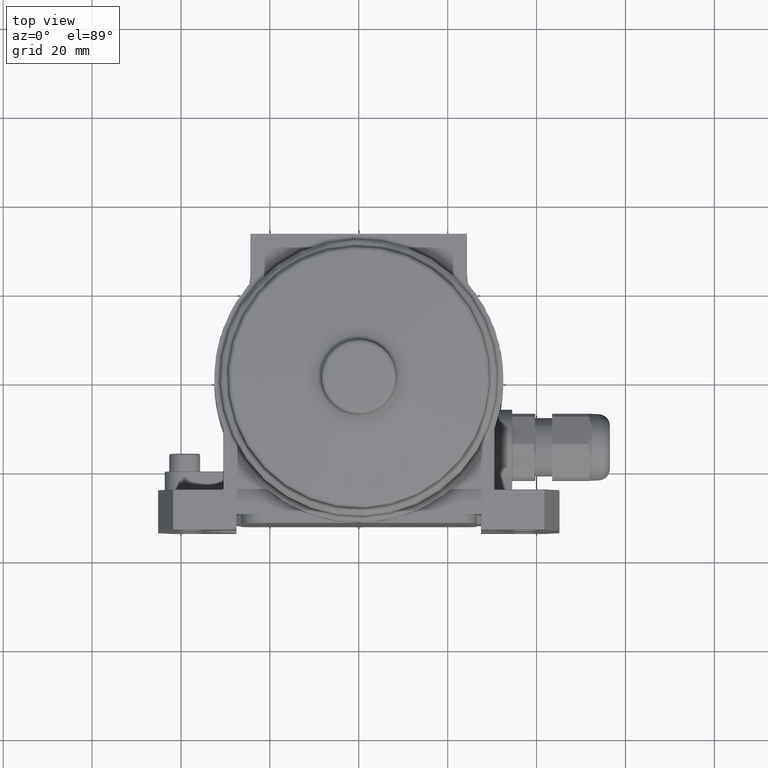
[diagram: clean part render]
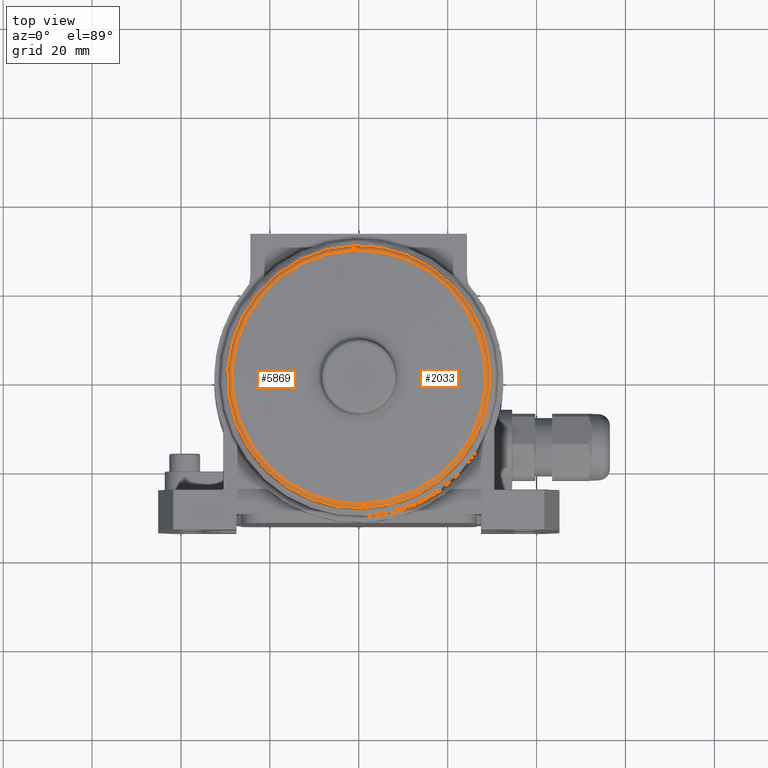
[diagram: same view with one multi-face feature highlighted, each face labeled with its STEP entity id]
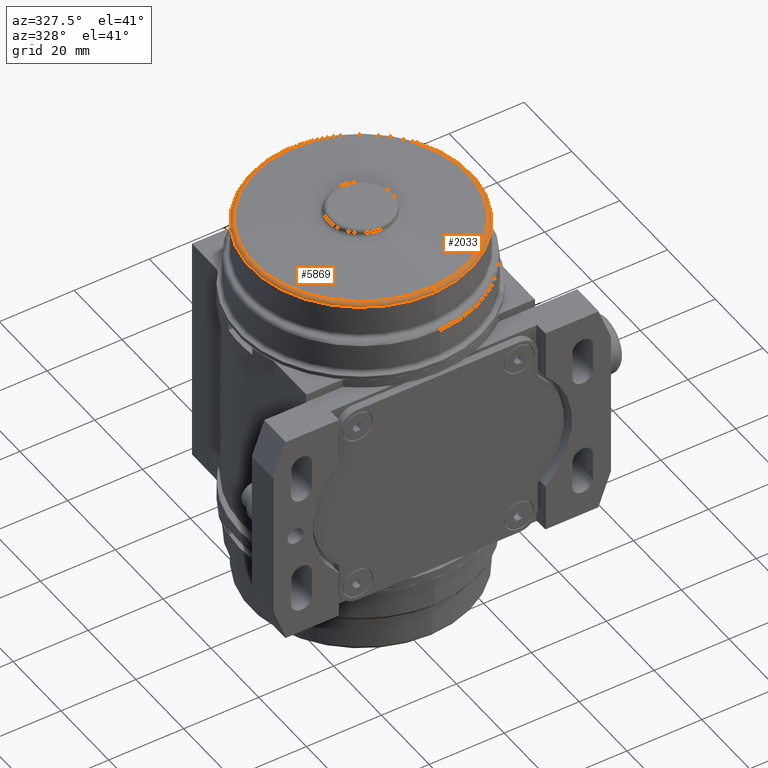
[diagram: same view with one multi-face feature highlighted, each face labeled with its STEP entity id]
A machine part, top view. The highlighted faces form ONE feature: a constant-radius fillet chain: 2 tangent blend faces with common blend radius 1 mm. The faces share edges in the B-rep.
A second angle (auxiliary view) of the same feature is appended — it is thin or edge-on in the first view.
Their STEP definitions:
[1] entity #5869 (Torus):
#171 = DIRECTION ( 'NONE',  ( 0.03768558897256078100, -0.9992896458904151300, 0.0000000000000000000 ) ) ;
#371 = AXIS2_PLACEMENT_3D ( 'NONE', #23838, #8519, #24100 ) ;
#1623 = CARTESIAN_POINT ( 'NONE',  ( 0.0000000000000000000, -0.02249999999999475000, 51.57986352407429800 ) ) ;
#2700 = VERTEX_POINT ( 'NONE', #23989 ) ;
#2984 = CIRCLE ( 'NONE', #371, 0.9999999999999993300 ) ;
#4948 = CARTESIAN_POINT ( 'NONE',  ( 1.111724874690546400, -29.50154455376723900, 50.58366882598259900 ) ) ;
#5869 = ADVANCED_FACE ( 'NONE', ( #10472 ), #6221, .T. ) ;
#6221 = TOROIDAL_SURFACE ( 'NONE', #20265, 28.50000000000000000, 1.000000000000000000 ) ;
#6584 = EDGE_CURVE ( 'NONE', #12715, #9105, #23047, .T. ) ;
#7219 = CARTESIAN_POINT ( 'NONE',  ( 1.077323801215768000, -28.58934873918433800, 51.57986352407429800 ) ) ;
#7322 = DIRECTION ( 'NONE',  ( 0.03768558897256078100, -0.9992896458904150200, 0.0000000000000000000 ) ) ;
#8519 = DIRECTION ( 'NONE',  ( -0.9992896458904151300, -0.03768558897256078100, 0.0000000000000000000 ) ) ;
#8523 = CIRCLE ( 'NONE', #21025, 29.50000000000005300 ) ;
#8687 = EDGE_CURVE ( 'NONE', #2700, #12715, #13360, .T. ) ;
#9105 = VERTEX_POINT ( 'NONE', #7219 ) ;
#9346 = DIRECTION ( 'NONE',  ( -0.0000000000000000000, -0.0000000000000000000, -1.000000000000000000 ) ) ;
#9565 = DIRECTION ( 'NONE',  ( 0.0000000000000000000, 0.0000000000000000000, 1.000000000000000000 ) ) ;
#9733 = CARTESIAN_POINT ( 'NONE',  ( 0.0000000000000000000, -0.02249999999999475000, 50.58366882598259900 ) ) ;
#10472 = FACE_OUTER_BOUND ( 'NONE', #12993, .T. ) ;
#11252 = VERTEX_POINT ( 'NONE', #4948 ) ;
#12715 = VERTEX_POINT ( 'NONE', #18965 ) ;
#12912 = DIRECTION ( 'NONE',  ( 0.9992896458904151300, 0.03768558897256065600, -0.0000000000000000000 ) ) ;
#12993 = EDGE_LOOP ( 'NONE', ( #22309, #17554, #21710, #15293 ) ) ;
#13071 = DIRECTION ( 'NONE',  ( -0.03768558897256061400, 0.9992896458904151300, 0.0000000000000000000 ) ) ;
#13172 = DIRECTION ( 'NONE',  ( 0.0000000000000000000, 0.0000000000000000000, 1.000000000000000000 ) ) ;
#13360 = CIRCLE ( 'NONE', #15662, 0.9999999999999993300 ) ;
#15293 = ORIENTED_EDGE ( 'NONE', *, *, #6584, .F. ) ;
#15662 = AXIS2_PLACEMENT_3D ( 'NONE', #16905, #12912, #13071 ) ;
#16905 = CARTESIAN_POINT ( 'NONE',  ( -1.074039285717980600, 28.45725490787689100, 50.58366882598259900 ) ) ;
#17554 = ORIENTED_EDGE ( 'NONE', *, *, #18052, .F. ) ;
#18052 = EDGE_CURVE ( 'NONE', #11252, #2700, #8523, .T. ) ;
#18965 = CARTESIAN_POINT ( 'NONE',  ( -1.077323801215764700, 28.54434873918435000, 51.57986352407429800 ) ) ;
#20265 = AXIS2_PLACEMENT_3D ( 'NONE', #9733, #9565, #171 ) ;
#20775 = CARTESIAN_POINT ( 'NONE',  ( 0.0000000000000000000, -0.02249999999999475000, 50.58366882598259900 ) ) ;
#20903 = AXIS2_PLACEMENT_3D ( 'NONE', #1623, #13172, #7322 ) ;
#21025 = AXIS2_PLACEMENT_3D ( 'NONE', #20775, #9346, #22719 ) ;
#21710 = ORIENTED_EDGE ( 'NONE', *, *, #22385, .T. ) ;
#22309 = ORIENTED_EDGE ( 'NONE', *, *, #8687, .F. ) ;
#22385 = EDGE_CURVE ( 'NONE', #11252, #9105, #2984, .T. ) ;
#22719 = DIRECTION ( 'NONE',  ( 0.03768558897256078100, -0.9992896458904151300, 0.0000000000000000000 ) ) ;
#23047 = CIRCLE ( 'NONE', #20903, 28.58715574274770100 ) ;
#23838 = CARTESIAN_POINT ( 'NONE',  ( 1.074039285717984300, -28.50225490787687800, 50.58366882598259900 ) ) ;
#23989 = CARTESIAN_POINT ( 'NONE',  ( -1.111724874690542800, 29.45654455376724800, 50.58366882598259900 ) ) ;
#24100 = DIRECTION ( 'NONE',  ( 0.03768558897256083000, -0.9992896458904151300, 0.0000000000000000000 ) ) ;
[2] entity #2033 (Torus):
#117 = ORIENTED_EDGE ( 'NONE', *, *, #17020, .F. ) ;
#371 = AXIS2_PLACEMENT_3D ( 'NONE', #23838, #8519, #24100 ) ;
#1318 = EDGE_LOOP ( 'NONE', ( #117, #19097, #12547, #7007 ) ) ;
#1988 = DIRECTION ( 'NONE',  ( 0.03768558897256078100, -0.9992896458904151300, 0.0000000000000000000 ) ) ;
#2033 = ADVANCED_FACE ( 'NONE', ( #6323 ), #21389, .T. ) ;
#2700 = VERTEX_POINT ( 'NONE', #23989 ) ;
#2984 = CIRCLE ( 'NONE', #371, 0.9999999999999993300 ) ;
#3797 = CARTESIAN_POINT ( 'NONE',  ( 0.0000000000000000000, -0.02249999999999475000, 50.58366882598259900 ) ) ;
#4499 = DIRECTION ( 'NONE',  ( 0.03768558897256078100, -0.9992896458904150200, 0.0000000000000000000 ) ) ;
#4948 = CARTESIAN_POINT ( 'NONE',  ( 1.111724874690546400, -29.50154455376723900, 50.58366882598259900 ) ) ;
#4972 = AXIS2_PLACEMENT_3D ( 'NONE', #21285, #11727, #4499 ) ;
#5870 = CIRCLE ( 'NONE', #19225, 29.50000000000005300 ) ;
#6287 = EDGE_CURVE ( 'NONE', #9105, #12715, #22766, .T. ) ;
#6323 = FACE_OUTER_BOUND ( 'NONE', #1318, .T. ) ;
#7007 = ORIENTED_EDGE ( 'NONE', *, *, #22385, .F. ) ;
#7219 = CARTESIAN_POINT ( 'NONE',  ( 1.077323801215768000, -28.58934873918433800, 51.57986352407429800 ) ) ;
#7649 = DIRECTION ( 'NONE',  ( 0.03768558897256078100, -0.9992896458904151300, 0.0000000000000000000 ) ) ;
#8519 = DIRECTION ( 'NONE',  ( -0.9992896458904151300, -0.03768558897256078100, 0.0000000000000000000 ) ) ;
#8687 = EDGE_CURVE ( 'NONE', #2700, #12715, #13360, .T. ) ;
#9105 = VERTEX_POINT ( 'NONE', #7219 ) ;
#9477 = DIRECTION ( 'NONE',  ( 0.0000000000000000000, 0.0000000000000000000, 1.000000000000000000 ) ) ;
#11252 = VERTEX_POINT ( 'NONE', #4948 ) ;
#11727 = DIRECTION ( 'NONE',  ( 0.0000000000000000000, 0.0000000000000000000, 1.000000000000000000 ) ) ;
#12547 = ORIENTED_EDGE ( 'NONE', *, *, #6287, .F. ) ;
#12715 = VERTEX_POINT ( 'NONE', #18965 ) ;
#12912 = DIRECTION ( 'NONE',  ( 0.9992896458904151300, 0.03768558897256065600, -0.0000000000000000000 ) ) ;
#13071 = DIRECTION ( 'NONE',  ( -0.03768558897256061400, 0.9992896458904151300, 0.0000000000000000000 ) ) ;
#13360 = CIRCLE ( 'NONE', #15662, 0.9999999999999993300 ) ;
#15662 = AXIS2_PLACEMENT_3D ( 'NONE', #16905, #12912, #13071 ) ;
#16905 = CARTESIAN_POINT ( 'NONE',  ( -1.074039285717980600, 28.45725490787689100, 50.58366882598259900 ) ) ;
#17020 = EDGE_CURVE ( 'NONE', #2700, #11252, #5870, .T. ) ;
#18965 = CARTESIAN_POINT ( 'NONE',  ( -1.077323801215764700, 28.54434873918435000, 51.57986352407429800 ) ) ;
#19097 = ORIENTED_EDGE ( 'NONE', *, *, #8687, .T. ) ;
#19225 = AXIS2_PLACEMENT_3D ( 'NONE', #3797, #19257, #7649 ) ;
#19257 = DIRECTION ( 'NONE',  ( -0.0000000000000000000, -0.0000000000000000000, -1.000000000000000000 ) ) ;
#21147 = CARTESIAN_POINT ( 'NONE',  ( 0.0000000000000000000, -0.02249999999999475000, 50.58366882598259900 ) ) ;
#21285 = CARTESIAN_POINT ( 'NONE',  ( 0.0000000000000000000, -0.02249999999999475000, 51.57986352407429800 ) ) ;
#21389 = TOROIDAL_SURFACE ( 'NONE', #24301, 28.50000000000000000, 1.000000000000000000 ) ;
#22385 = EDGE_CURVE ( 'NONE', #11252, #9105, #2984, .T. ) ;
#22766 = CIRCLE ( 'NONE', #4972, 28.58715574274770100 ) ;
#23838 = CARTESIAN_POINT ( 'NONE',  ( 1.074039285717984300, -28.50225490787687800, 50.58366882598259900 ) ) ;
#23989 = CARTESIAN_POINT ( 'NONE',  ( -1.111724874690542800, 29.45654455376724800, 50.58366882598259900 ) ) ;
#24100 = DIRECTION ( 'NONE',  ( 0.03768558897256083000, -0.9992896458904151300, 0.0000000000000000000 ) ) ;
#24301 = AXIS2_PLACEMENT_3D ( 'NONE', #21147, #9477, #1988 ) ;